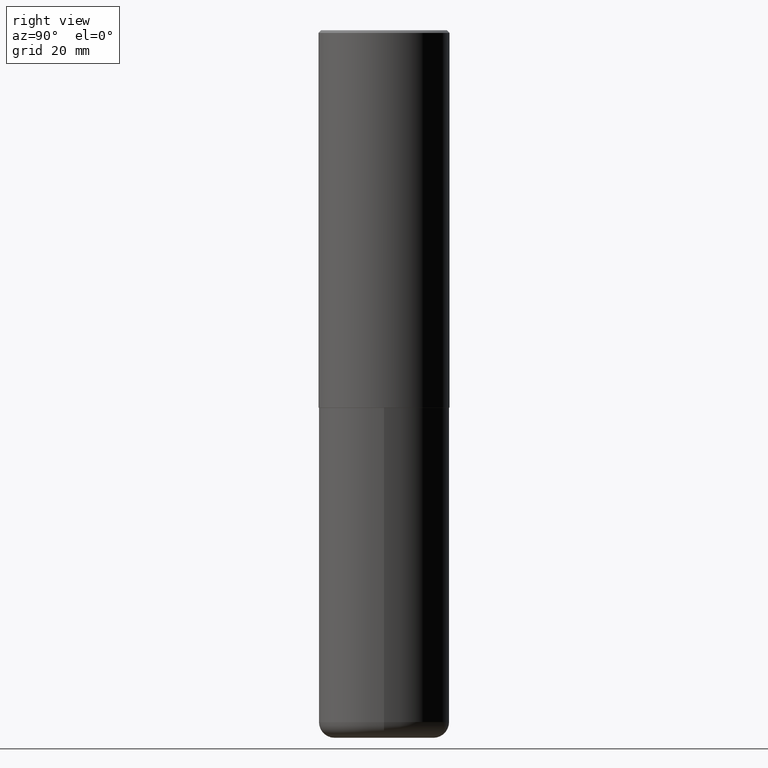
[diagram: clean part render]
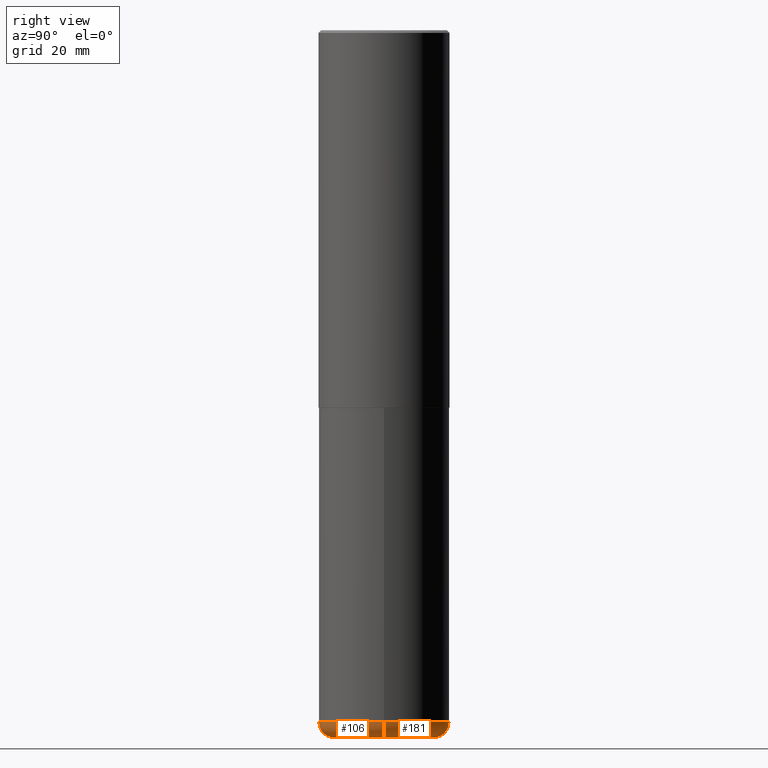
[diagram: same view with one multi-face feature highlighted, each face labeled with its STEP entity id]
A machine part, right view. The highlighted faces form ONE feature: a constant-radius fillet chain: 2 tangent blend faces with common blend radius 2.9997 mm. The faces share edges in the B-rep.
Their STEP definitions:
[1] entity #106 (Torus):
#7 = VERTEX_POINT ( 'NONE', #270 ) ;
#13 = DIRECTION ( 'NONE',  ( -2.445468806185136597E-29, 3.491481338843145583E-15, 1.000000000000000000 ) ) ;
#17 = DIRECTION ( 'NONE',  ( 7.105427357601001859E-15, 1.000000000000000000, -3.491481338843145583E-15 ) ) ;
#29 = EDGE_CURVE ( 'NONE', #7, #127, #368, .T. ) ;
#67 = ORIENTED_EDGE ( 'NONE', *, *, #75, .T. ) ;
#74 = DIRECTION ( 'NONE',  ( -6.982962677686266711E-15, -1.000000000000000000, 3.491481338843145583E-15 ) ) ;
#75 = EDGE_CURVE ( 'NONE', #151, #127, #396, .T. ) ;
#79 = FACE_OUTER_BOUND ( 'NONE', #269, .T. ) ;
#86 = AXIS2_PLACEMENT_3D ( 'NONE', #101, #17, #116 ) ;
#92 = ORIENTED_EDGE ( 'NONE', *, *, #320, .T. ) ;
#101 = CARTESIAN_POINT ( 'NONE',  ( -0.3740499999999999381, -1.548709426672329248E-14, -5.196900000000000297 ) ) ;
#106 = ADVANCED_FACE ( 'NONE', ( #79 ), #290, .T. ) ;
#107 = DIRECTION ( 'NONE',  ( -2.445468806185136597E-29, 3.491481338843145583E-15, 1.000000000000000000 ) ) ;
#116 = DIRECTION ( 'NONE',  ( -1.000000000000000000, 7.105427357601001859E-15, 0.000000000000000000 ) ) ;
#120 = DIRECTION ( 'NONE',  ( 1.000000000000000000, -6.982962677686270655E-15, 0.000000000000000000 ) ) ;
#127 = VERTEX_POINT ( 'NONE', #141 ) ;
#137 = AXIS2_PLACEMENT_3D ( 'NONE', #175, #74, #120 ) ;
#141 = CARTESIAN_POINT ( 'NONE',  ( 0.4921499999999999764, -2.158154445165724138E-14, -5.196900000000000297 ) ) ;
#151 = VERTEX_POINT ( 'NONE', #247 ) ;
#156 = CIRCLE ( 'NONE', #180, 0.3740499999999999381 ) ;
#169 = DIRECTION ( 'NONE',  ( 1.000000000000000000, -6.982962677686265133E-15, 0.000000000000000000 ) ) ;
#175 = CARTESIAN_POINT ( 'NONE',  ( 0.3740499999999999381, -2.075685655942249311E-14, -5.196900000000000297 ) ) ;
#178 = AXIS2_PLACEMENT_3D ( 'NONE', #233, #13, #191 ) ;
#180 = AXIS2_PLACEMENT_3D ( 'NONE', #342, #107, #169 ) ;
#191 = DIRECTION ( 'NONE',  ( 1.000000000000000000, -6.982962677686265922E-15, 0.000000000000000000 ) ) ;
#194 = VERTEX_POINT ( 'NONE', #362 ) ;
#209 = DIRECTION ( 'NONE',  ( -2.445468806185136597E-29, 3.491481338843145583E-15, 1.000000000000000000 ) ) ;
#233 = CARTESIAN_POINT ( 'NONE',  ( 1.270885683886353718E-28, -1.814487936983394718E-14, -5.196900000000000297 ) ) ;
#247 = CARTESIAN_POINT ( 'NONE',  ( 0.3740499999999999381, -2.116920050553986882E-14, -5.315000000000000391 ) ) ;
#269 = EDGE_LOOP ( 'NONE', ( #328, #92, #67, #417 ) ) ;
#270 = CARTESIAN_POINT ( 'NONE',  ( -0.4921499999999999764, -1.464794329579061349E-14, -5.196900000000000297 ) ) ;
#280 = CIRCLE ( 'NONE', #86, 0.1181000000000000383 ) ;
#290 = TOROIDAL_SURFACE ( 'NONE', #408, 0.3740499999999999381, 0.1181000000000000383 ) ;
#291 = EDGE_CURVE ( 'NONE', #194, #7, #280, .T. ) ;
#307 = DIRECTION ( 'NONE',  ( 1.000000000000000000, -6.982962677686266711E-15, 4.883557194083112340E-29 ) ) ;
#309 = CARTESIAN_POINT ( 'NONE',  ( 1.270885683886353718E-28, -1.814487936983394718E-14, -5.196900000000000297 ) ) ;
#320 = EDGE_CURVE ( 'NONE', #194, #151, #156, .T. ) ;
#328 = ORIENTED_EDGE ( 'NONE', *, *, #291, .F. ) ;
#342 = CARTESIAN_POINT ( 'NONE',  ( 1.299766670487400218E-28, -1.855722331595131973E-14, -5.315000000000000391 ) ) ;
#362 = CARTESIAN_POINT ( 'NONE',  ( -0.3740499999999999381, -1.527369075431564084E-14, -5.315000000000000391 ) ) ;
#368 = CIRCLE ( 'NONE', #178, 0.4921499999999999764 ) ;
#396 = CIRCLE ( 'NONE', #137, 0.1181000000000000383 ) ;
#408 = AXIS2_PLACEMENT_3D ( 'NONE', #309, #209, #307 ) ;
#417 = ORIENTED_EDGE ( 'NONE', *, *, #29, .F. ) ;
[2] entity #181 (Torus):
#7 = VERTEX_POINT ( 'NONE', #270 ) ;
#11 = DIRECTION ( 'NONE',  ( -2.445468806185136597E-29, 3.491481338843145583E-15, 1.000000000000000000 ) ) ;
#17 = DIRECTION ( 'NONE',  ( 7.105427357601001859E-15, 1.000000000000000000, -3.491481338843145583E-15 ) ) ;
#37 = ORIENTED_EDGE ( 'NONE', *, *, #291, .T. ) ;
#50 = AXIS2_PLACEMENT_3D ( 'NONE', #376, #208, #380 ) ;
#65 = CARTESIAN_POINT ( 'NONE',  ( 1.270885683886353718E-28, -1.814487936983394718E-14, -5.196900000000000297 ) ) ;
#70 = CARTESIAN_POINT ( 'NONE',  ( 1.270885683886353718E-28, -1.814487936983394718E-14, -5.196900000000000297 ) ) ;
#74 = DIRECTION ( 'NONE',  ( -6.982962677686266711E-15, -1.000000000000000000, 3.491481338843145583E-15 ) ) ;
#75 = EDGE_CURVE ( 'NONE', #151, #127, #396, .T. ) ;
#86 = AXIS2_PLACEMENT_3D ( 'NONE', #101, #17, #116 ) ;
#101 = CARTESIAN_POINT ( 'NONE',  ( -0.3740499999999999381, -1.548709426672329248E-14, -5.196900000000000297 ) ) ;
#105 = AXIS2_PLACEMENT_3D ( 'NONE', #70, #11, #166 ) ;
#116 = DIRECTION ( 'NONE',  ( -1.000000000000000000, 7.105427357601001859E-15, 0.000000000000000000 ) ) ;
#120 = DIRECTION ( 'NONE',  ( 1.000000000000000000, -6.982962677686270655E-15, 0.000000000000000000 ) ) ;
#127 = VERTEX_POINT ( 'NONE', #141 ) ;
#137 = AXIS2_PLACEMENT_3D ( 'NONE', #175, #74, #120 ) ;
#141 = CARTESIAN_POINT ( 'NONE',  ( 0.4921499999999999764, -2.158154445165724138E-14, -5.196900000000000297 ) ) ;
#151 = VERTEX_POINT ( 'NONE', #247 ) ;
#159 = ORIENTED_EDGE ( 'NONE', *, *, #261, .F. ) ;
#161 = DIRECTION ( 'NONE',  ( -2.445468806185136597E-29, 3.491481338843145583E-15, 1.000000000000000000 ) ) ;
#166 = DIRECTION ( 'NONE',  ( 1.000000000000000000, -6.982962677686266711E-15, 4.883557194083112340E-29 ) ) ;
#175 = CARTESIAN_POINT ( 'NONE',  ( 0.3740499999999999381, -2.075685655942249311E-14, -5.196900000000000297 ) ) ;
#181 = ADVANCED_FACE ( 'NONE', ( #200 ), #213, .T. ) ;
#185 = ORIENTED_EDGE ( 'NONE', *, *, #371, .T. ) ;
#194 = VERTEX_POINT ( 'NONE', #362 ) ;
#200 = FACE_OUTER_BOUND ( 'NONE', #398, .T. ) ;
#208 = DIRECTION ( 'NONE',  ( -2.445468806185136597E-29, 3.491481338843145583E-15, 1.000000000000000000 ) ) ;
#213 = TOROIDAL_SURFACE ( 'NONE', #105, 0.3740499999999999381, 0.1181000000000000383 ) ;
#247 = CARTESIAN_POINT ( 'NONE',  ( 0.3740499999999999381, -2.116920050553986882E-14, -5.315000000000000391 ) ) ;
#259 = CIRCLE ( 'NONE', #350, 0.4921499999999999764 ) ;
#261 = EDGE_CURVE ( 'NONE', #127, #7, #259, .T. ) ;
#267 = ORIENTED_EDGE ( 'NONE', *, *, #75, .F. ) ;
#270 = CARTESIAN_POINT ( 'NONE',  ( -0.4921499999999999764, -1.464794329579061349E-14, -5.196900000000000297 ) ) ;
#280 = CIRCLE ( 'NONE', #86, 0.1181000000000000383 ) ;
#291 = EDGE_CURVE ( 'NONE', #194, #7, #280, .T. ) ;
#295 = DIRECTION ( 'NONE',  ( 1.000000000000000000, -6.982962677686265922E-15, 0.000000000000000000 ) ) ;
#350 = AXIS2_PLACEMENT_3D ( 'NONE', #65, #161, #295 ) ;
#362 = CARTESIAN_POINT ( 'NONE',  ( -0.3740499999999999381, -1.527369075431564084E-14, -5.315000000000000391 ) ) ;
#371 = EDGE_CURVE ( 'NONE', #151, #194, #389, .T. ) ;
#376 = CARTESIAN_POINT ( 'NONE',  ( 1.299766670487400218E-28, -1.855722331595131973E-14, -5.315000000000000391 ) ) ;
#380 = DIRECTION ( 'NONE',  ( 1.000000000000000000, -6.982962677686265133E-15, 0.000000000000000000 ) ) ;
#389 = CIRCLE ( 'NONE', #50, 0.3740499999999999381 ) ;
#396 = CIRCLE ( 'NONE', #137, 0.1181000000000000383 ) ;
#398 = EDGE_LOOP ( 'NONE', ( #185, #37, #159, #267 ) ) ;